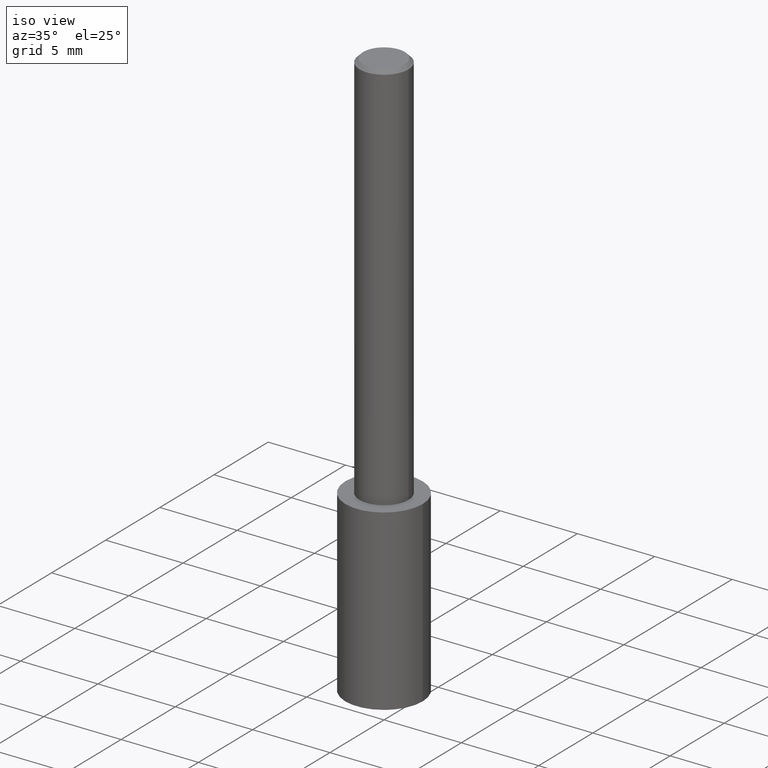
[diagram: clean part render]
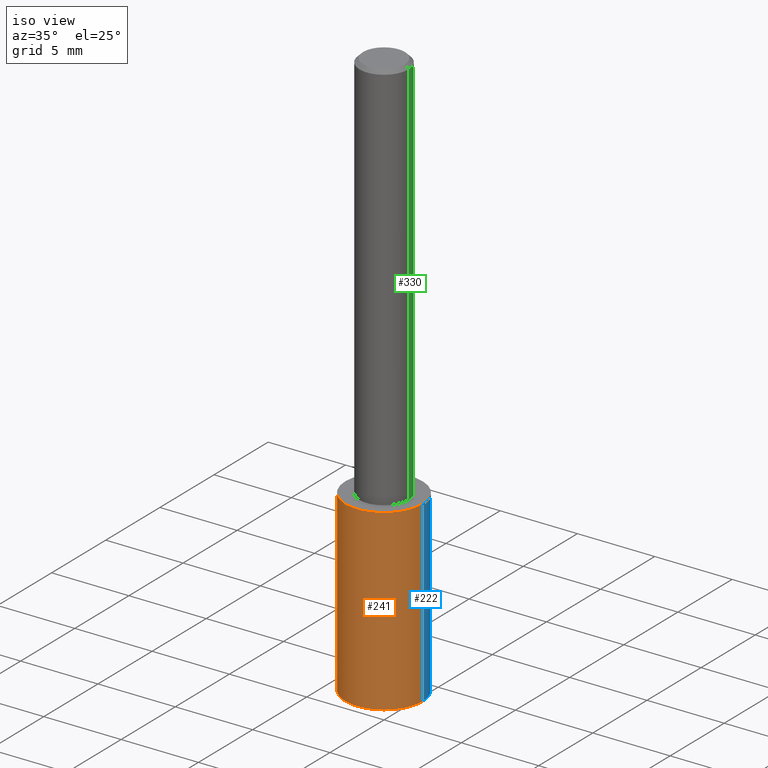
[diagram: same view with three faces highlighted in distinct colors, each labeled with its STEP entity id]
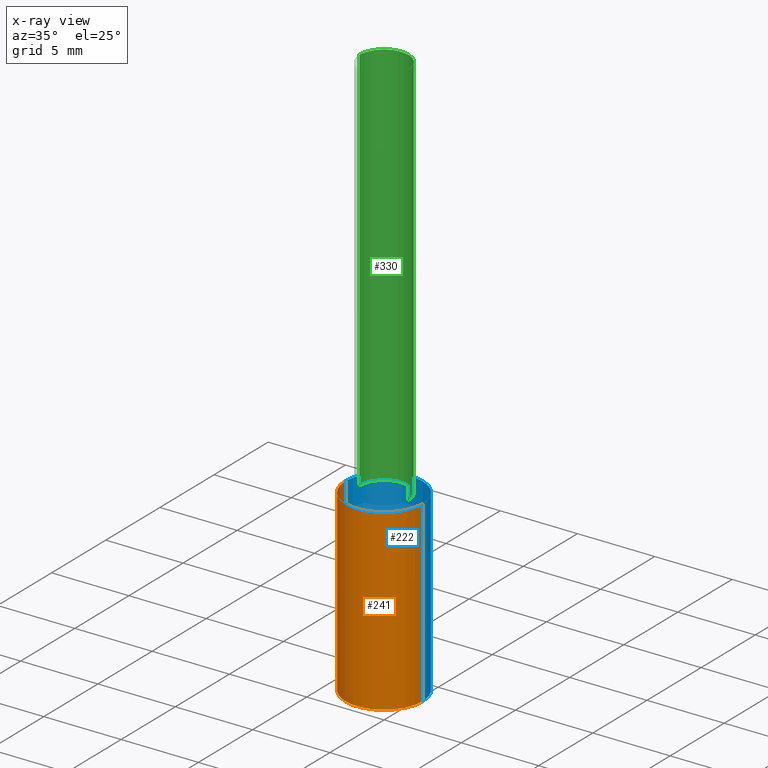
[diagram: x-ray of the same camera — body ghosted, the three highlighted faces saturated]
A machine part, iso view with three faces highlighted in distinct colors.
The next image is the same camera in x-ray (body ghosted, the three faces saturated) — at least one of them is partly hidden behind the body in this view.
Their STEP definitions:

[orange] entity #241 — the highlighted cylindrical surface (partial cylindrical patch) has radius 2.4994 mm, axis along (-0, 0, 1).
#11 = CARTESIAN_POINT ( 'NONE',  ( 0.09840000000000000135, -5.764140054266837223E-15, -1.454115326437548150 ) ) ;
#12 = EDGE_CURVE ( 'NONE', #334, #317, #76, .T. ) ;
#14 = AXIS2_PLACEMENT_3D ( 'NONE', #24, #262, #131 ) ;
#24 = CARTESIAN_POINT ( 'NONE',  ( 2.445468806185137438E-29, -3.491481338843146371E-15, -1.000000000000000222 ) ) ;
#33 = EDGE_CURVE ( 'NONE', #285, #334, #296, .T. ) ;
#43 = CARTESIAN_POINT ( 'NONE',  ( 0.09840000000000000135, -4.178604866327475025E-15, -1.000000000000000222 ) ) ;
#50 = FACE_OUTER_BOUND ( 'NONE', #203, .T. ) ;
#54 = AXIS2_PLACEMENT_3D ( 'NONE', #269, #85, #110 ) ;
#76 = CIRCLE ( 'NONE', #54, 0.09840000000000000135 ) ;
#81 = AXIS2_PLACEMENT_3D ( 'NONE', #309, #163, #264 ) ;
#85 = DIRECTION ( 'NONE',  ( -2.445468806185136597E-29, 3.491481338843145583E-15, 1.000000000000000000 ) ) ;
#87 = DIRECTION ( 'NONE',  ( -2.445468806185136877E-29, 3.491481338843145188E-15, 1.000000000000000000 ) ) ;
#110 = DIRECTION ( 'NONE',  ( 1.000000000000000000, -6.982962677686266711E-15, 0.000000000000000000 ) ) ;
#125 = EDGE_CURVE ( 'NONE', #285, #192, #339, .T. ) ;
#130 = VECTOR ( 'NONE', #332, 39.37007874015748143 ) ;
#131 = DIRECTION ( 'NONE',  ( 1.000000000000000000, -6.982962677686266711E-15, 0.000000000000000000 ) ) ;
#144 = ORIENTED_EDGE ( 'NONE', *, *, #33, .F. ) ;
#163 = DIRECTION ( 'NONE',  ( -2.445468806185136597E-29, 3.491481338843145583E-15, 1.000000000000000000 ) ) ;
#170 = CARTESIAN_POINT ( 'NONE',  ( -0.09840000000000000135, -3.585074880824888582E-15, -1.000000000000000222 ) ) ;
#171 = ORIENTED_EDGE ( 'NONE', *, *, #125, .T. ) ;
#186 = CARTESIAN_POINT ( 'NONE',  ( -0.09840000000000000135, -2.792307286855207483E-15, -1.000000000000000222 ) ) ;
#192 = VERTEX_POINT ( 'NONE', #11 ) ;
#203 = EDGE_LOOP ( 'NONE', ( #144, #171, #313, #304 ) ) ;
#241 = ADVANCED_FACE ( 'NONE', ( #50 ), #258, .T. ) ;
#256 = CARTESIAN_POINT ( 'NONE',  ( -0.09840000000000000135, -4.377842474794570075E-15, -1.454115326437548150 ) ) ;
#258 = CYLINDRICAL_SURFACE ( 'NONE', #14, 0.09840000000000000135 ) ;
#262 = DIRECTION ( 'NONE',  ( -2.445468806185136597E-29, 3.491481338843145583E-15, 1.000000000000000000 ) ) ;
#264 = DIRECTION ( 'NONE',  ( 1.000000000000000000, -6.982962677686271444E-15, 0.000000000000000000 ) ) ;
#269 = CARTESIAN_POINT ( 'NONE',  ( 2.445468806185136877E-29, -3.491481338843145977E-15, -1.000000000000000222 ) ) ;
#277 = LINE ( 'NONE', #303, #130 ) ;
#285 = VERTEX_POINT ( 'NONE', #256 ) ;
#296 = LINE ( 'NONE', #186, #316 ) ;
#303 = CARTESIAN_POINT ( 'NONE',  ( 0.09840000000000000135, -4.178604866327475025E-15, -1.000000000000000222 ) ) ;
#304 = ORIENTED_EDGE ( 'NONE', *, *, #12, .F. ) ;
#309 = CARTESIAN_POINT ( 'NONE',  ( 3.555993671398741299E-29, -5.077016526782508174E-15, -1.454115326437548150 ) ) ;
#313 = ORIENTED_EDGE ( 'NONE', *, *, #337, .T. ) ;
#316 = VECTOR ( 'NONE', #87, 39.37007874015748143 ) ;
#317 = VERTEX_POINT ( 'NONE', #43 ) ;
#332 = DIRECTION ( 'NONE',  ( -2.445468806185136877E-29, 3.491481338843145188E-15, 1.000000000000000000 ) ) ;
#334 = VERTEX_POINT ( 'NONE', #170 ) ;
#337 = EDGE_CURVE ( 'NONE', #192, #317, #277, .T. ) ;
#339 = CIRCLE ( 'NONE', #81, 0.09840000000000000135 ) ;

[blue] entity #222 — the highlighted cylindrical surface (partial cylindrical patch) has radius 2.4994 mm, axis along (-0, 0, 1).
#4 = AXIS2_PLACEMENT_3D ( 'NONE', #236, #35, #294 ) ;
#6 = EDGE_CURVE ( 'NONE', #192, #285, #201, .T. ) ;
#11 = CARTESIAN_POINT ( 'NONE',  ( 0.09840000000000000135, -5.764140054266837223E-15, -1.454115326437548150 ) ) ;
#13 = AXIS2_PLACEMENT_3D ( 'NONE', #83, #185, #165 ) ;
#33 = EDGE_CURVE ( 'NONE', #285, #334, #296, .T. ) ;
#35 = DIRECTION ( 'NONE',  ( -2.445468806185136597E-29, 3.491481338843145583E-15, 1.000000000000000000 ) ) ;
#43 = CARTESIAN_POINT ( 'NONE',  ( 0.09840000000000000135, -4.178604866327475025E-15, -1.000000000000000222 ) ) ;
#73 = ORIENTED_EDGE ( 'NONE', *, *, #33, .T. ) ;
#83 = CARTESIAN_POINT ( 'NONE',  ( 2.445468806185137438E-29, -3.491481338843146371E-15, -1.000000000000000222 ) ) ;
#87 = DIRECTION ( 'NONE',  ( -2.445468806185136877E-29, 3.491481338843145188E-15, 1.000000000000000000 ) ) ;
#130 = VECTOR ( 'NONE', #332, 39.37007874015748143 ) ;
#140 = CIRCLE ( 'NONE', #158, 0.09840000000000000135 ) ;
#145 = DIRECTION ( 'NONE',  ( 1.000000000000000000, -6.982962677686266711E-15, 0.000000000000000000 ) ) ;
#158 = AXIS2_PLACEMENT_3D ( 'NONE', #174, #194, #145 ) ;
#165 = DIRECTION ( 'NONE',  ( 1.000000000000000000, -6.982962677686266711E-15, 0.000000000000000000 ) ) ;
#170 = CARTESIAN_POINT ( 'NONE',  ( -0.09840000000000000135, -3.585074880824888582E-15, -1.000000000000000222 ) ) ;
#174 = CARTESIAN_POINT ( 'NONE',  ( 2.445468806185136877E-29, -3.491481338843145977E-15, -1.000000000000000222 ) ) ;
#185 = DIRECTION ( 'NONE',  ( -2.445468806185136597E-29, 3.491481338843145583E-15, 1.000000000000000000 ) ) ;
#186 = CARTESIAN_POINT ( 'NONE',  ( -0.09840000000000000135, -2.792307286855207483E-15, -1.000000000000000222 ) ) ;
#192 = VERTEX_POINT ( 'NONE', #11 ) ;
#194 = DIRECTION ( 'NONE',  ( -2.445468806185136597E-29, 3.491481338843145583E-15, 1.000000000000000000 ) ) ;
#195 = ORIENTED_EDGE ( 'NONE', *, *, #318, .F. ) ;
#201 = CIRCLE ( 'NONE', #4, 0.09840000000000000135 ) ;
#215 = ORIENTED_EDGE ( 'NONE', *, *, #337, .F. ) ;
#222 = ADVANCED_FACE ( 'NONE', ( #287 ), #238, .T. ) ;
#236 = CARTESIAN_POINT ( 'NONE',  ( 3.555993671398741299E-29, -5.077016526782508174E-15, -1.454115326437548150 ) ) ;
#238 = CYLINDRICAL_SURFACE ( 'NONE', #13, 0.09840000000000000135 ) ;
#252 = EDGE_LOOP ( 'NONE', ( #257, #73, #195, #215 ) ) ;
#256 = CARTESIAN_POINT ( 'NONE',  ( -0.09840000000000000135, -4.377842474794570075E-15, -1.454115326437548150 ) ) ;
#257 = ORIENTED_EDGE ( 'NONE', *, *, #6, .T. ) ;
#277 = LINE ( 'NONE', #303, #130 ) ;
#285 = VERTEX_POINT ( 'NONE', #256 ) ;
#287 = FACE_OUTER_BOUND ( 'NONE', #252, .T. ) ;
#294 = DIRECTION ( 'NONE',  ( 1.000000000000000000, -6.982962677686271444E-15, 0.000000000000000000 ) ) ;
#296 = LINE ( 'NONE', #186, #316 ) ;
#303 = CARTESIAN_POINT ( 'NONE',  ( 0.09840000000000000135, -4.178604866327475025E-15, -1.000000000000000222 ) ) ;
#316 = VECTOR ( 'NONE', #87, 39.37007874015748143 ) ;
#317 = VERTEX_POINT ( 'NONE', #43 ) ;
#318 = EDGE_CURVE ( 'NONE', #317, #334, #140, .T. ) ;
#332 = DIRECTION ( 'NONE',  ( -2.445468806185136877E-29, 3.491481338843145188E-15, 1.000000000000000000 ) ) ;
#334 = VERTEX_POINT ( 'NONE', #170 ) ;
#337 = EDGE_CURVE ( 'NONE', #192, #317, #277, .T. ) ;

[green] entity #330 — the highlighted cylindrical surface (edge-blend (fillet) strip) has radius 1.5875 mm, axis along (-0, 0, 1).
#9 = LINE ( 'NONE', #208, #48 ) ;
#10 = ORIENTED_EDGE ( 'NONE', *, *, #122, .T. ) ;
#28 = EDGE_CURVE ( 'NONE', #251, #31, #121, .T. ) ;
#31 = VERTEX_POINT ( 'NONE', #107 ) ;
#45 = EDGE_LOOP ( 'NONE', ( #300, #10, #278, #47 ) ) ;
#47 = ORIENTED_EDGE ( 'NONE', *, *, #267, .F. ) ;
#48 = VECTOR ( 'NONE', #324, 39.37007874015748143 ) ;
#63 = DIRECTION ( 'NONE',  ( 1.000000000000000000, -6.982962677686266711E-15, 4.876176775795935793E-29 ) ) ;
#71 = VECTOR ( 'NONE', #338, 39.37007874015748143 ) ;
#75 = DIRECTION ( 'NONE',  ( -2.445468806185136597E-29, 3.491481338843145583E-15, 1.000000000000000000 ) ) ;
#106 = CARTESIAN_POINT ( 'NONE',  ( -0.06250000000000006939, 4.440892098500631092E-16, -3.074334431409319267E-30 ) ) ;
#107 = CARTESIAN_POINT ( 'NONE',  ( -0.06250000000000000000, -1.318017778347336672E-15, -0.009375000000000069042 ) ) ;
#113 = EDGE_CURVE ( 'NONE', #151, #272, #261, .T. ) ;
#121 = CIRCLE ( 'NONE', #282, 0.06250000000000000000 ) ;
#122 = EDGE_CURVE ( 'NONE', #272, #31, #180, .T. ) ;
#127 = CARTESIAN_POINT ( 'NONE',  ( 2.445468806185137438E-29, -3.491481338843146371E-15, -1.000000000000000222 ) ) ;
#138 = CARTESIAN_POINT ( 'NONE',  ( 0.000000000000000000, 0.000000000000000000, 0.000000000000000000 ) ) ;
#151 = VERTEX_POINT ( 'NONE', #228 ) ;
#161 = DIRECTION ( 'NONE',  ( 1.000000000000000000, -6.982962677686264344E-15, 0.000000000000000000 ) ) ;
#180 = LINE ( 'NONE', #106, #71 ) ;
#191 = DIRECTION ( 'NONE',  ( -2.445468806185136597E-29, 3.491481338843145583E-15, 1.000000000000000000 ) ) ;
#208 = CARTESIAN_POINT ( 'NONE',  ( 0.06250000000000006939, -4.364351673553921624E-16, 3.047610484872463374E-30 ) ) ;
#209 = CARTESIAN_POINT ( 'NONE',  ( 2.292627005798582375E-31, -3.273263755165473266E-17, -0.009375000000000069042 ) ) ;
#217 = AXIS2_PLACEMENT_3D ( 'NONE', #127, #75, #161 ) ;
#228 = CARTESIAN_POINT ( 'NONE',  ( 0.06250000000000012490, -3.927916506198539224E-15, -1.000000000000000222 ) ) ;
#234 = CARTESIAN_POINT ( 'NONE',  ( 0.06250000000000000000, -4.691678049070464390E-16, -0.009375000000000069042 ) ) ;
#240 = DIRECTION ( 'NONE',  ( 1.000000000000000000, -6.982962677686266711E-15, 0.000000000000000000 ) ) ;
#246 = FACE_OUTER_BOUND ( 'NONE', #45, .T. ) ;
#251 = VERTEX_POINT ( 'NONE', #234 ) ;
#261 = CIRCLE ( 'NONE', #217, 0.06250000000000012490 ) ;
#267 = EDGE_CURVE ( 'NONE', #151, #251, #9, .T. ) ;
#272 = VERTEX_POINT ( 'NONE', #328 ) ;
#278 = ORIENTED_EDGE ( 'NONE', *, *, #28, .F. ) ;
#279 = CYLINDRICAL_SURFACE ( 'NONE', #340, 0.06250000000000006939 ) ;
#282 = AXIS2_PLACEMENT_3D ( 'NONE', #209, #298, #240 ) ;
#298 = DIRECTION ( 'NONE',  ( -2.445468806185136597E-29, 3.491481338843145583E-15, 1.000000000000000000 ) ) ;
#300 = ORIENTED_EDGE ( 'NONE', *, *, #113, .T. ) ;
#324 = DIRECTION ( 'NONE',  ( -2.445468806185136877E-29, 3.491481338843145188E-15, 1.000000000000000000 ) ) ;
#328 = CARTESIAN_POINT ( 'NONE',  ( -0.06250000000000012490, -1.318017778347335489E-15, -1.000000000000000222 ) ) ;
#330 = ADVANCED_FACE ( 'NONE', ( #246 ), #279, .T. ) ;
#338 = DIRECTION ( 'NONE',  ( -2.445468806185136877E-29, 3.491481338843145188E-15, 1.000000000000000000 ) ) ;
#340 = AXIS2_PLACEMENT_3D ( 'NONE', #138, #191, #63 ) ;